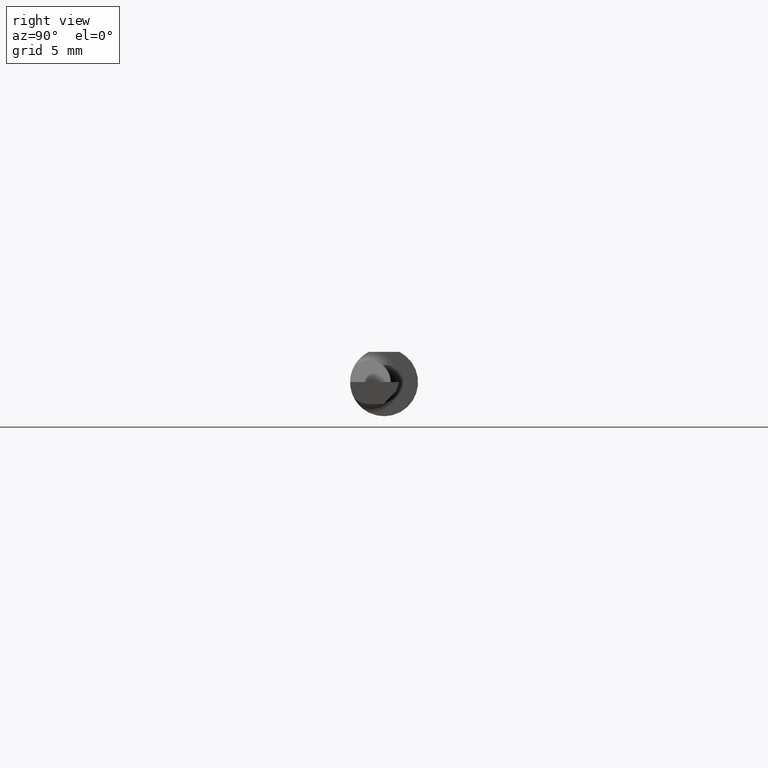
[diagram: clean part render]
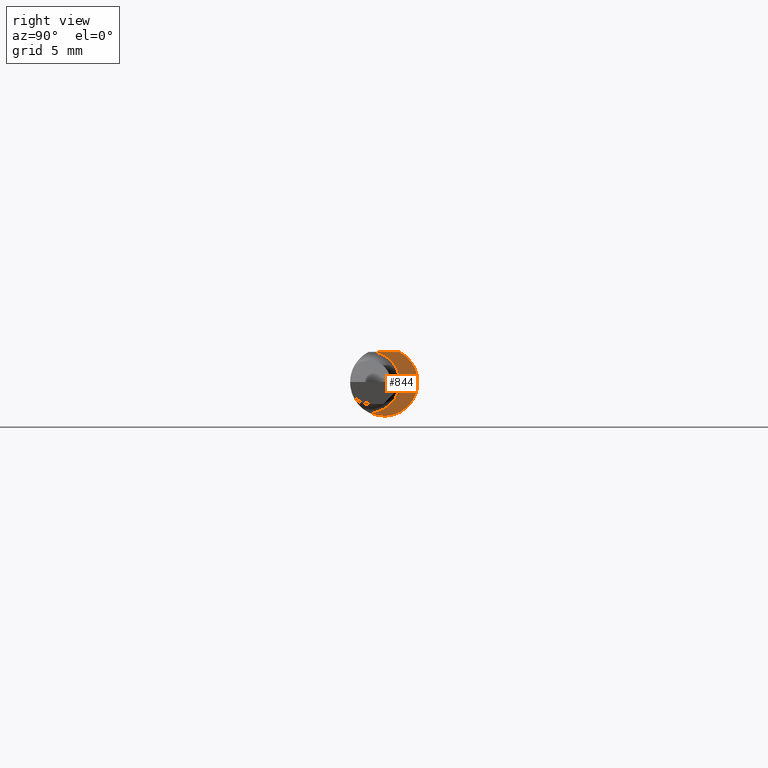
[diagram: same view with one face highlighted and labeled with its STEP entity id]
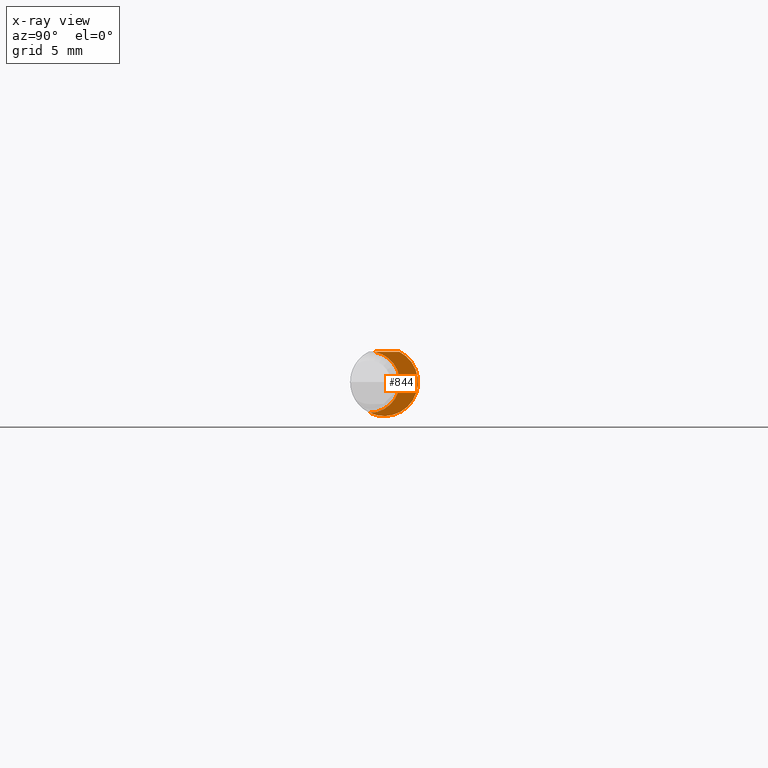
[diagram: x-ray of the same camera — body ghosted, the highlighted face saturated]
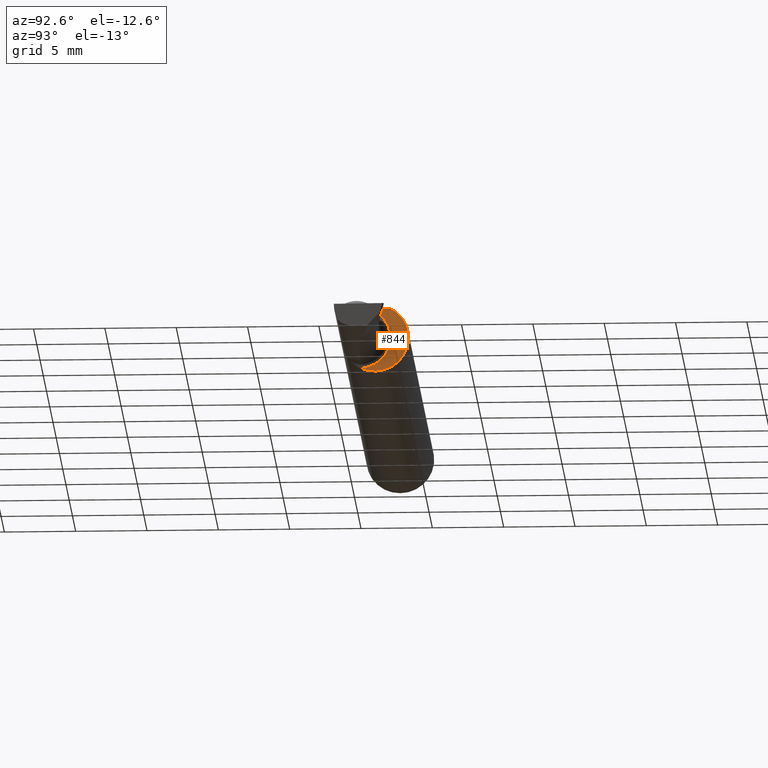
[diagram: same view with one face highlighted and labeled with its STEP entity id]
A machine part, right view. The second image highlights one B-rep face of the part: STEP entity #844.
The next image is the same camera in x-ray: the body ghosted, the highlighted face saturated — about 0% of this face is hidden behind the body in this view.
A second angle (auxiliary view) of the same face is appended — the face is thin or edge-on in the first view.
In plain terms, the highlighted planar face has unit normal (1, 0, 0).
Its self-contained STEP definition (entity closure, byte-faithful):
#44 = CIRCLE ( 'NONE', #1172, 0.09360000000000001652 ) ;
#54 = VERTEX_POINT ( 'NONE', #964 ) ;
#90 = CARTESIAN_POINT ( 'NONE',  ( 1.560000000000000053, -0.03926105769230769926, -0.08496781360539583383 ) ) ;
#228 = AXIS2_PLACEMENT_3D ( 'NONE', #742, #758, #278 ) ;
#234 = CARTESIAN_POINT ( 'NONE',  ( 1.560000000000000053, 0.04793338999999998545, 0.08360000000000000764 ) ) ;
#262 = EDGE_LOOP ( 'NONE', ( #434, #314, #326 ) ) ;
#278 = DIRECTION ( 'NONE',  ( 0.000000000000000000, 0.000000000000000000, -1.000000000000000000 ) ) ;
#281 = DIRECTION ( 'NONE',  ( 1.000000000000000000, 0.000000000000000000, 0.000000000000000000 ) ) ;
#282 = VECTOR ( 'NONE', #766, 39.37007874015748143 ) ;
#314 = ORIENTED_EDGE ( 'NONE', *, *, #422, .T. ) ;
#326 = ORIENTED_EDGE ( 'NONE', *, *, #678, .T. ) ;
#331 = VERTEX_POINT ( 'NONE', #90 ) ;
#374 = PLANE ( 'NONE',  #228 ) ;
#422 = EDGE_CURVE ( 'NONE', #698, #331, #1091, .T. ) ;
#434 = ORIENTED_EDGE ( 'NONE', *, *, #754, .T. ) ;
#438 = FACE_OUTER_BOUND ( 'NONE', #262, .T. ) ;
#481 = CARTESIAN_POINT ( 'NONE',  ( 1.560000000000000053, -0.02623640667031312823, 0.08360000000000000764 ) ) ;
#556 = DIRECTION ( 'NONE',  ( 0.000000000000000000, 0.000000000000000000, -1.000000000000000000 ) ) ;
#575 = CARTESIAN_POINT ( 'NONE',  ( 1.560000000000000053, -0.04160000000000000503, 0.000000000000000000 ) ) ;
#678 = EDGE_CURVE ( 'NONE', #331, #54, #44, .T. ) ;
#698 = VERTEX_POINT ( 'NONE', #481 ) ;
#742 = CARTESIAN_POINT ( 'NONE',  ( 1.560000000000000053, 0.1184000000000000330, 0.000000000000000000 ) ) ;
#754 = EDGE_CURVE ( 'NONE', #54, #698, #859, .T. ) ;
#758 = DIRECTION ( 'NONE',  ( 1.000000000000000000, 0.000000000000000000, 0.000000000000000000 ) ) ;
#766 = DIRECTION ( 'NONE',  ( 0.000000000000000000, -1.000000000000000000, 0.000000000000000000 ) ) ;
#844 = ADVANCED_FACE ( 'NONE', ( #438 ), #374, .T. ) ;
#848 = DIRECTION ( 'NONE',  ( -1.000000000000000000, -0.000000000000000000, -0.000000000000000000 ) ) ;
#859 = LINE ( 'NONE', #234, #282 ) ;
#964 = CARTESIAN_POINT ( 'NONE',  ( 1.560000000000000053, 0.04209513035969836975, 0.08360000000000000764 ) ) ;
#979 = AXIS2_PLACEMENT_3D ( 'NONE', #575, #848, #1014 ) ;
#1014 = DIRECTION ( 'NONE',  ( 0.000000000000000000, -9.039202920212634402E-16, -1.000000000000000000 ) ) ;
#1065 = CARTESIAN_POINT ( 'NONE',  ( 1.560000000000000053, 0.000000000000000000, 0.000000000000000000 ) ) ;
#1091 = CIRCLE ( 'NONE', #979, 0.08500000000000001998 ) ;
#1172 = AXIS2_PLACEMENT_3D ( 'NONE', #1065, #281, #556 ) ;